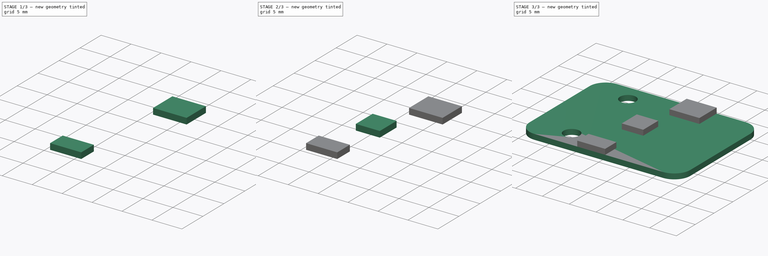
[diagram: build sequence overview — one tinted view per stage of 3, left to right]
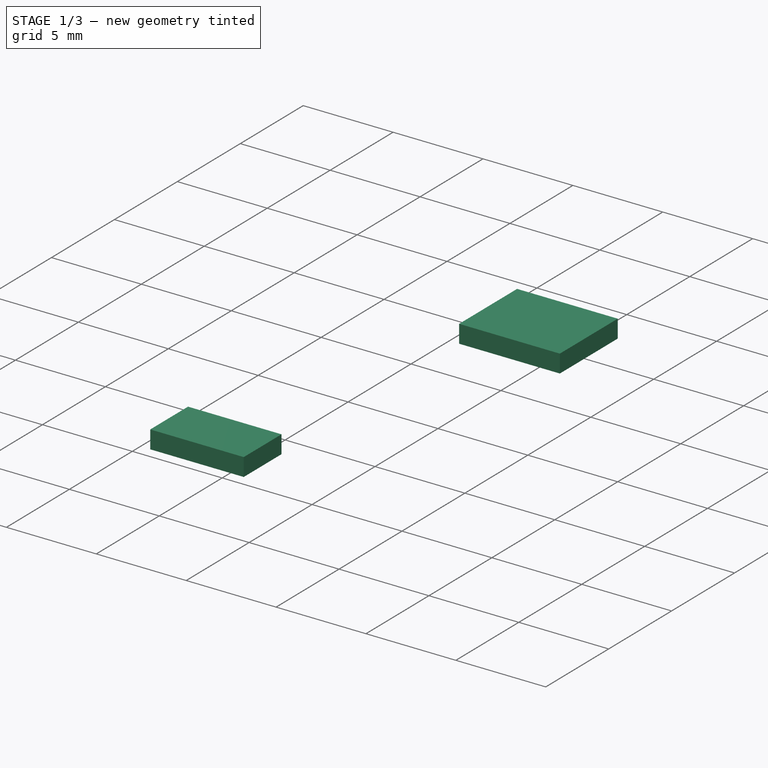
[diagram: stage 1 of 3 — iso view after this stage's code; geometry added in this stage tinted green]
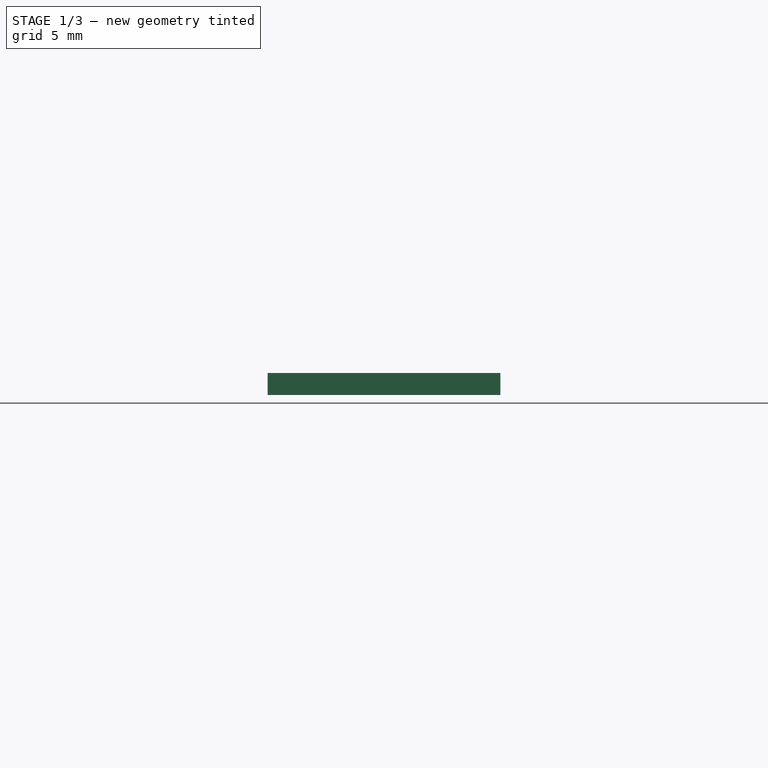
[diagram: stage 1 of 3 — front view after this stage's code; geometry added in this stage tinted green]
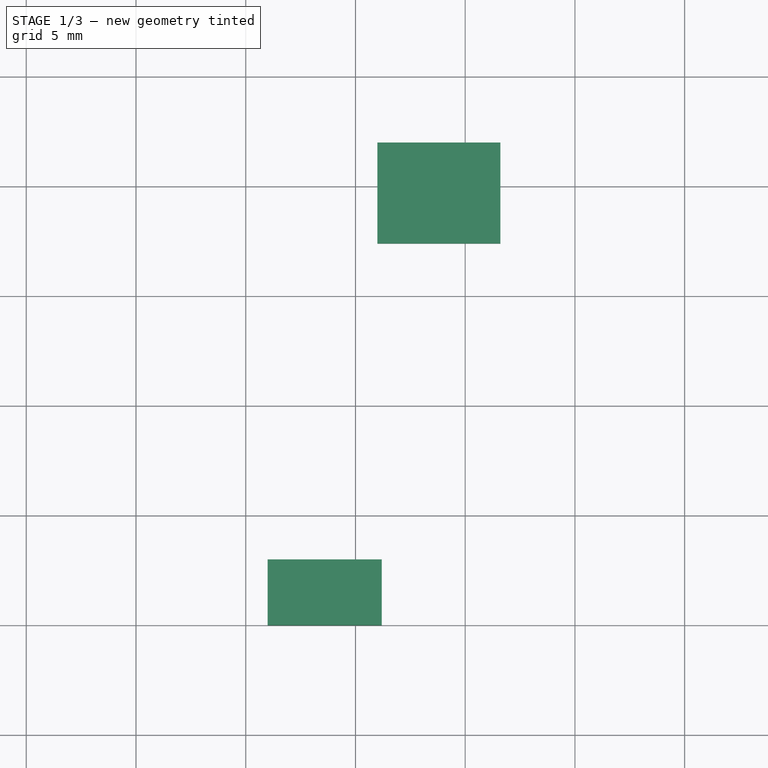
[diagram: stage 1 of 3 — top view after this stage's code; geometry added in this stage tinted green]
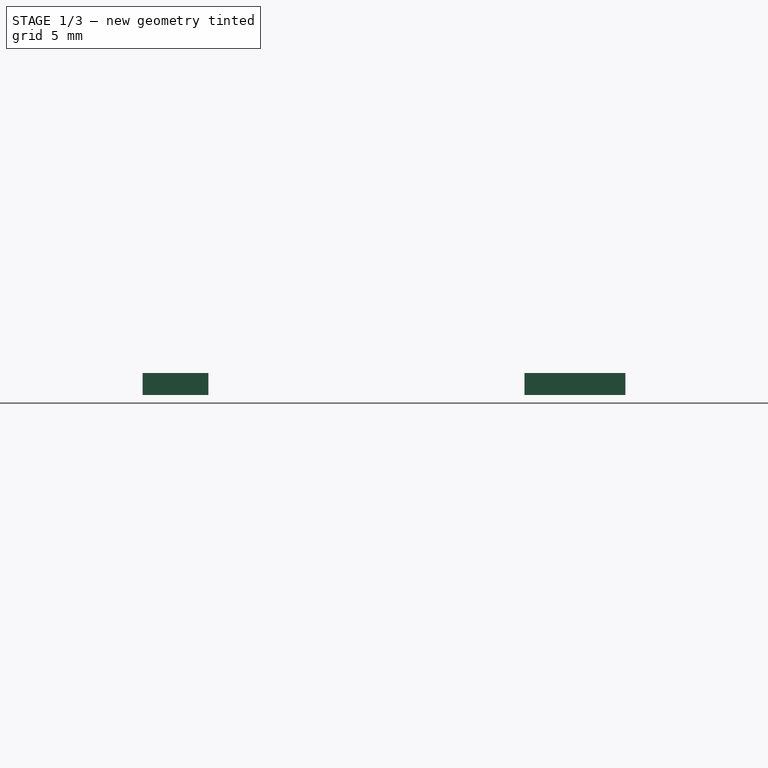
[diagram: stage 1 of 3 — right view after this stage's code; geometry added in this stage tinted green]
FCSTD DOCUMENT  (FreeCAD 1.0R39109 (Git))
Label: SEN0290
License: All rights reserved
LicenseURL: https://en.wikipedia.org/wiki/All_rights_reserved
objects: Part::Box×3, Part::Feature×2, Sketcher::SketchObject×1, Part::Extrusion×1, Part::Fillet×1, App::Part×1
note: 9 computed .brp shape members not serialized (recipe doc carries the construction recipe); baked Part::Feature solids carry a one-line shape summary decoded from their .brp

FEATURE [Part::Feature] Part__Feature004  label="Grove Connector (sit)"
  Placement = pos=(22.5,6,1.1) rot=(0.707107,0.707107,0;3.14159rad)
  shape: bbox 8 x 12 x 6.375 mm, 198 faces (baked)
FEATURE [Part::Box] Box001  label="mc001"
  AttacherType = Attacher::AttachEngine3D
  Height = 1
  Length = 5.2
  Placement = pos=(11,0,1) rot=(0,0,1;0rad)
  Width = 3
FEATURE [Part::Box] Box002  label="mc002"
  AttacherType = Attacher::AttachEngine3D
  Height = 1
  Length = 5.6
  Placement = pos=(16,17.4,1) rot=(0,0,1;0rad)
  Width = 4.6
FEATURE [Part::Feature] Part__Feature  label="Coilcraft-MA5532-AE"
  Placement = pos=(1.8,11,4) rot=(1,0,0;4.71239rad)
  shape: bbox 3.501 x 11.7 x 2.576 mm, 257 faces (baked)
FEATURE [App::Part] Part  label="SEN0290"
  Group = -> [Extrude,Sketch,Fillet,Box,Part__Feature004,Box001,Box002,Part__Feature]
  Origin = -> Origin
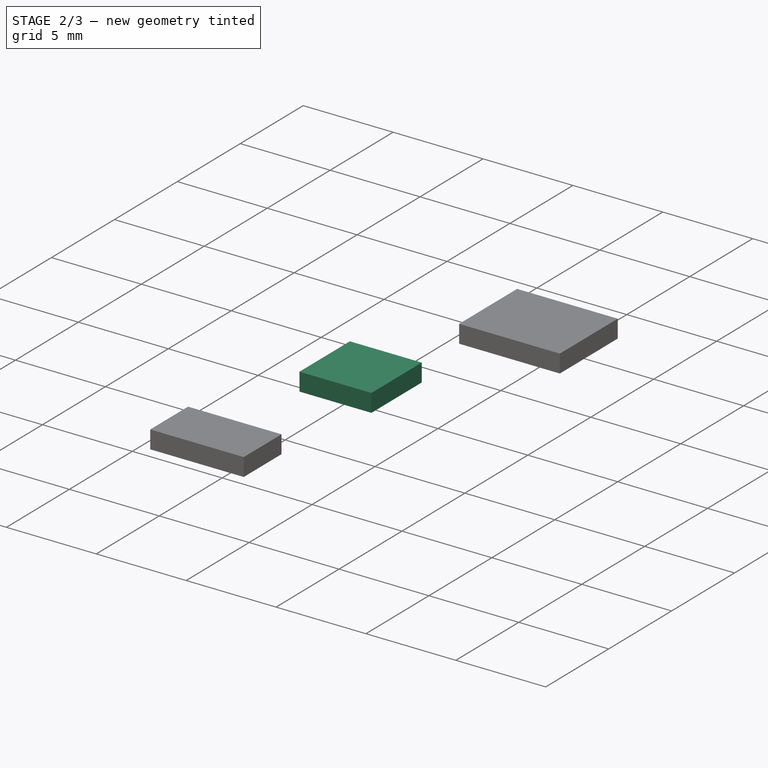
[diagram: stage 2 of 3 — iso view after this stage's code; geometry added in this stage tinted green]
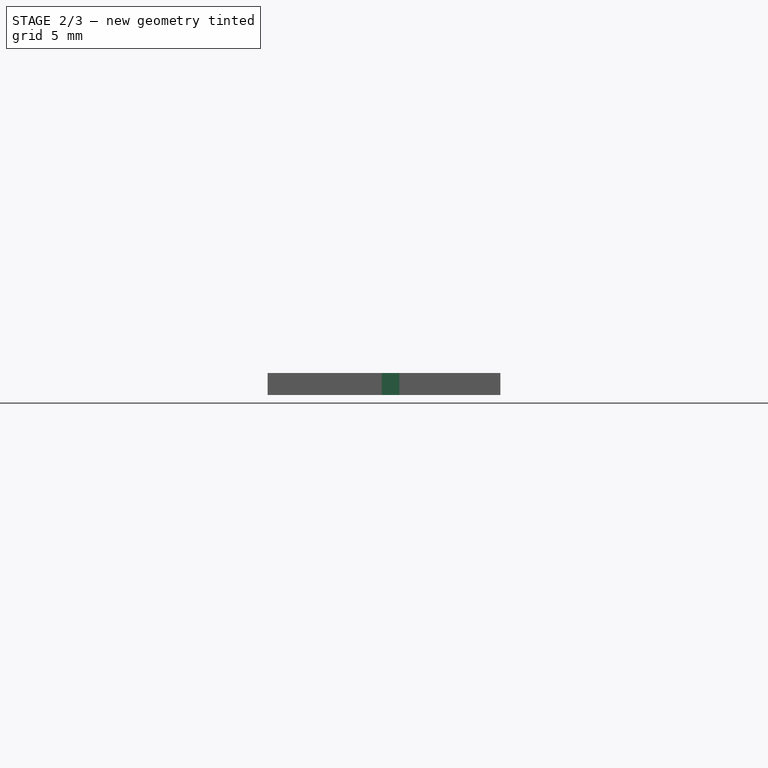
[diagram: stage 2 of 3 — front view after this stage's code; geometry added in this stage tinted green]
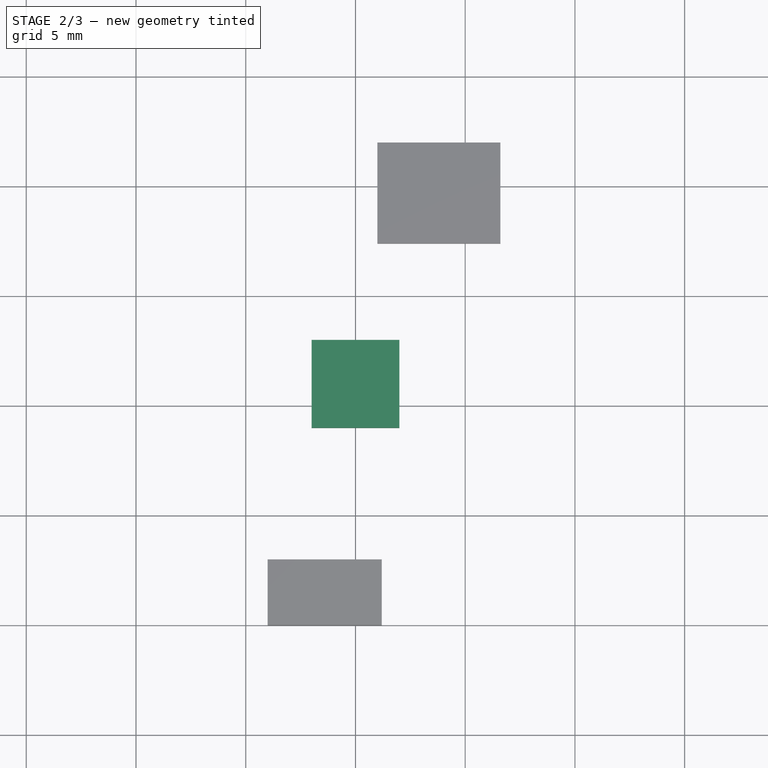
[diagram: stage 2 of 3 — top view after this stage's code; geometry added in this stage tinted green]
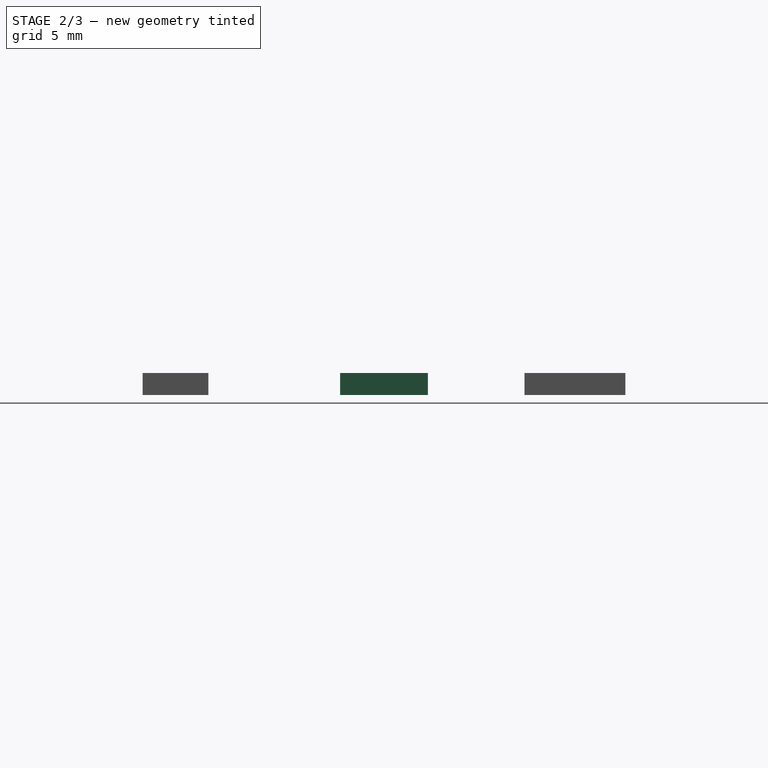
[diagram: stage 2 of 3 — right view after this stage's code; geometry added in this stage tinted green]
FEATURE [Part::Box] Box  label="mc"
  AttacherType = Attacher::AttachEngine3D
  Height = 1
  Length = 4
  Placement = pos=(13,9,1) rot=(0,0,1;0rad)
  Width = 4
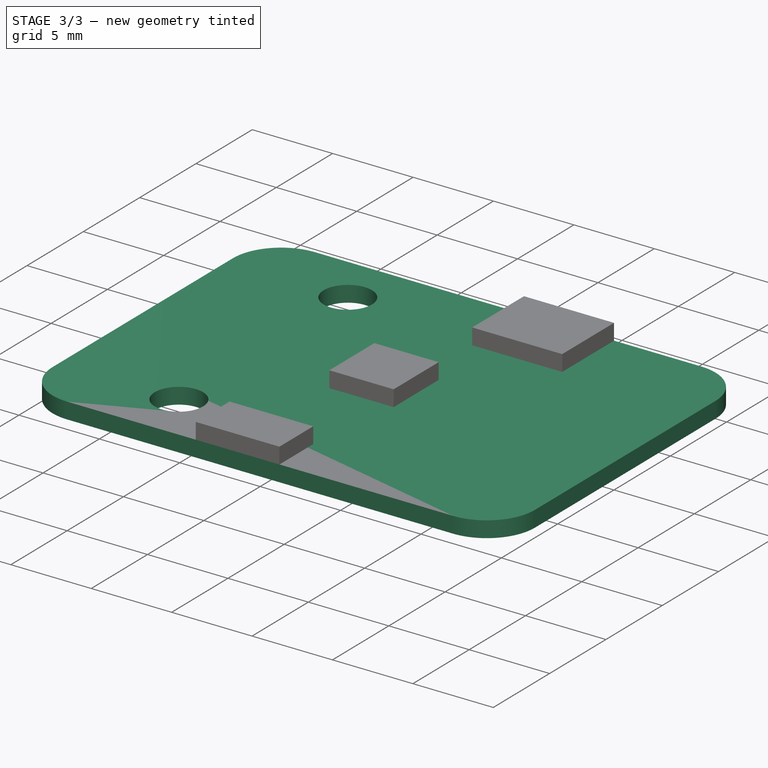
[diagram: stage 3 of 3 — iso view after this stage's code; geometry added in this stage tinted green]
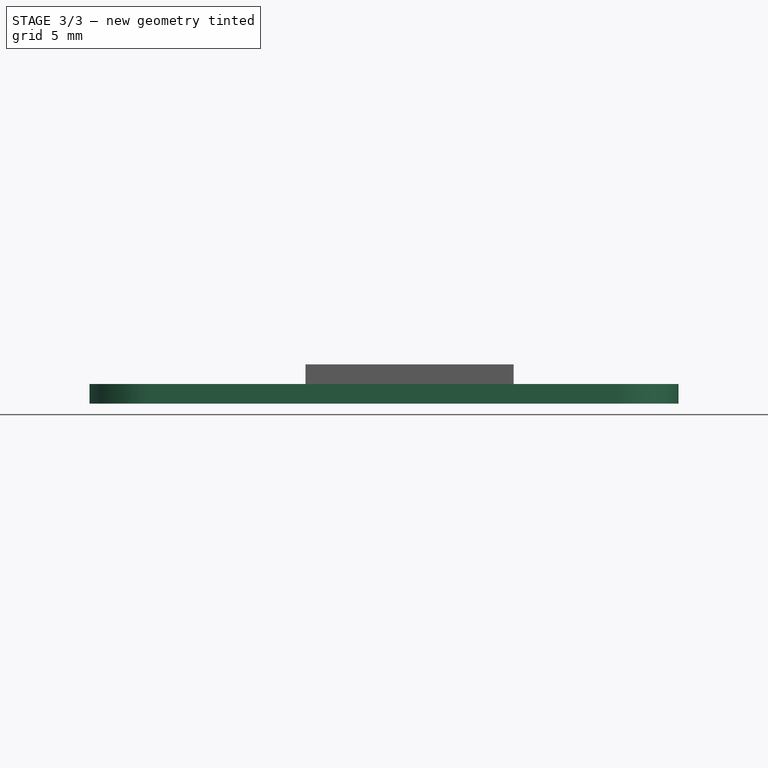
[diagram: stage 3 of 3 — front view after this stage's code; geometry added in this stage tinted green]
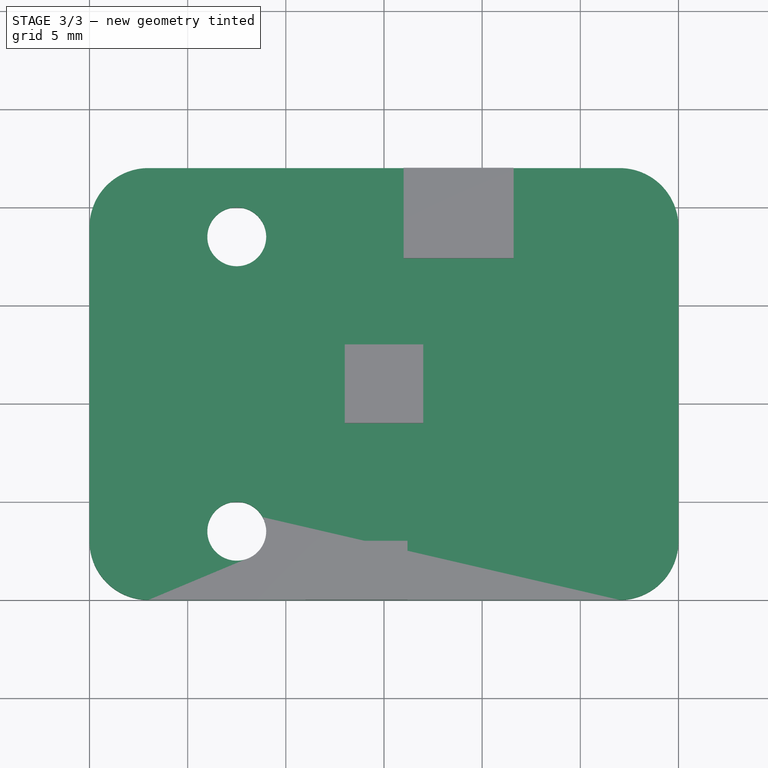
[diagram: stage 3 of 3 — top view after this stage's code; geometry added in this stage tinted green]
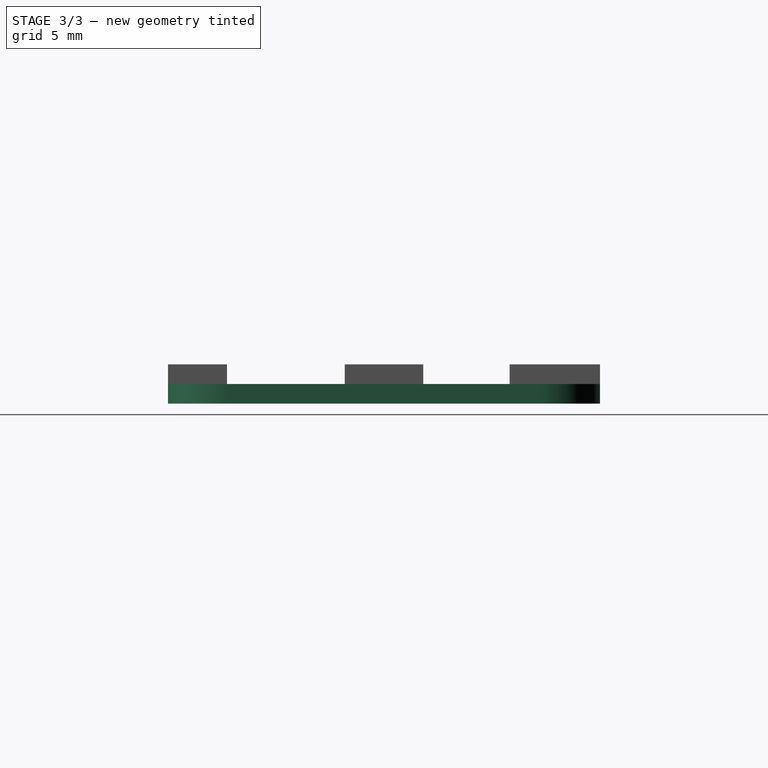
[diagram: stage 3 of 3 — right view after this stage's code; geometry added in this stage tinted green]
FEATURE [Sketcher::SketchObject] Sketch
  ArcFitTolerance = 1e-06
  FullyConstrained = true
  MakeInternals = false
  sketch-geometry (6):
    g0: LineSegment StartX=0 StartY=0 StartZ=0 EndX=30 EndY=0 EndZ=0
    g1: LineSegment StartX=30 StartY=0 StartZ=0 EndX=30 EndY=22 EndZ=0
    g2: LineSegment StartX=30 StartY=22 StartZ=0 EndX=0 EndY=22 EndZ=0
    g3: LineSegment StartX=0 StartY=22 StartZ=0 EndX=0 EndY=0 EndZ=0
    g4: Circle CenterX=7.5 CenterY=18.5 CenterZ=0 NormalX=0 NormalY=0 NormalZ=1 AngleXU=0 Radius=1.5
    g5: Circle CenterX=7.5 CenterY=3.5 CenterZ=0 NormalX=0 NormalY=0 NormalZ=1 AngleXU=0 Radius=1.5
  constraints (17):
    c: Coincident(g0,g1)
    c: Coincident(g1,g2)
    c: Coincident(g2,g3)
    c: Coincident(g3,g0)
    c: Horizontal(g0)
    c: Horizontal(g2)
    c: Vertical(g1)
    c: Vertical(g3)
    c: Coincident(g0,g-1)
    c: Distance(g3) = 22
    c: Distance(g2) = 30
    c: Diameter(g5) = 3
    c: Diameter(g4) = 3
    c: Distance(g5,g0) = 3.5
    c: Distance(g5,g3) = 7.5
    c: Distance(g4,g3) = 7.5
    c: Distance(g4,g2) = 3.5
FEATURE [Part::Extrusion] Extrude
  Base = -> Sketch
  Dir = (0,0,1)
  DirMode = 2
  FaceMakerClass = Part::FaceMakerBullseye
  FaceMakerMode = 3
  LengthFwd = 1
  LengthRev = 0
  Solid = true
  Symmetric = false
FEATURE [Part::Fillet] Fillet  label="PCB"
  Base = -> Extrude
  EdgeLinks = -> Extrude [Edge1,Edge2,Edge5,Edge8]
  Edges = 4 edges r=3: [Edge1,Edge2,Edge5,Edge8]
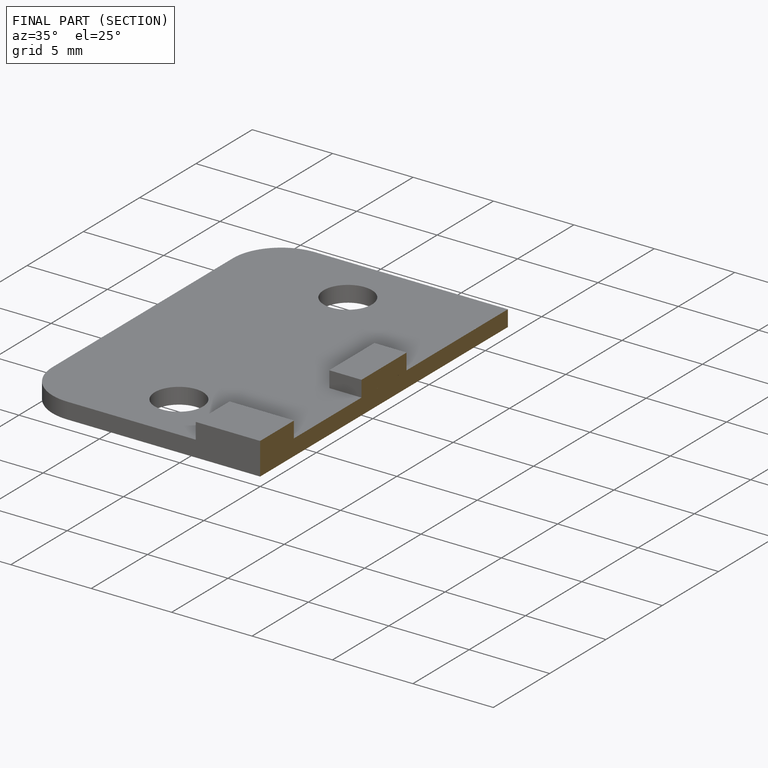
[diagram: finished part — half-section view (interior)]
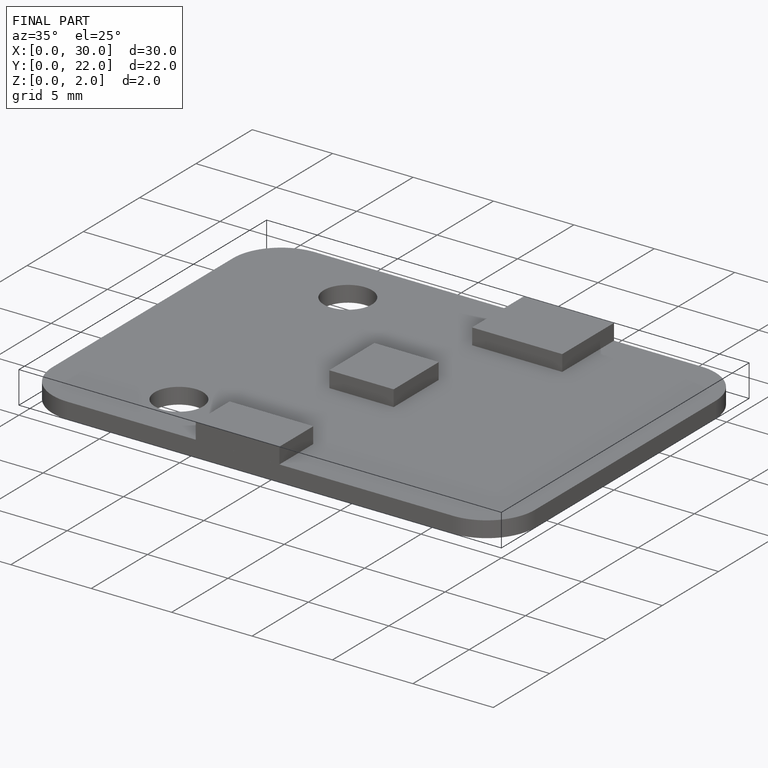
[diagram: finished part — iso view with bounding-box wireframe]
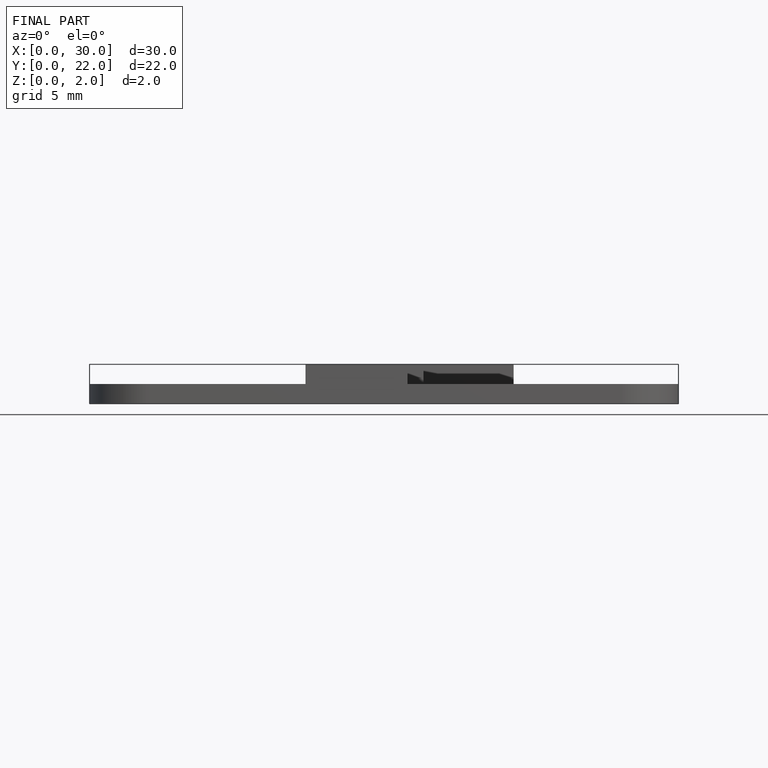
[diagram: finished part — front view with bounding-box wireframe]
